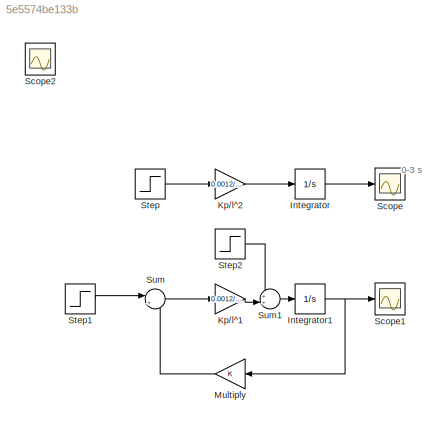
MODEL slx_5e5574be133b
KIND model
CONFIG AbsTol = auto
CONFIG EnableMultiTasking = off
CONFIG FixedStep = auto
CONFIG MaxStep = auto
CONFIG MinStep = auto
CONFIG RelTol = 1e-3
CONFIG SampleTimeConstraint = Unconstrained
CONFIG SolverName = VariableStepAuto
CONFIG StartTime = 0.0
CONFIG StopTime = 100
BLOCK [Integrator] Integrator
  InitialCondition = 0.5
BLOCK [Integrator] Integrator1
BLOCK [Gain] Kp//l^1
  Gain = 0.0012/(0.1*0.1)
BLOCK [Gain] Kp//l^2
  Gain = 0.0012/(0.1*0.1)
BLOCK [Gain] Multiply
  NameLocation = top
BLOCK [Scope] Scope
  Floating = off
  NumInputPorts = 1
  ScopeSpecificationString = Simulink.scopes.TimeScopeBlockCfg('CurrentConfiguration', extmgr.ConfigurationSet(extmgr.Configuration('Core','General UI',true),extmgr.Configuration('Core','Source UI',true),extmgr.Configuration('Sources','WiredSimulink',true),extmgr.Configuration('Visuals','Time Domain',true,'SerializedDisplays',{struct('MinYLimReal','-133.15','MaxYLimReal','15.35','YLabelReal','','MinYLimMag',' 0.00000','MaxYLi...<+1392ch>
BLOCK [Scope] Scope1
  Floating = off
  NumInputPorts = 1
  ScopeSpecificationString = Simulink.scopes.TimeScopeBlockCfg('CurrentConfiguration', extmgr.ConfigurationSet(extmgr.Configuration('Core','General UI',true),extmgr.Configuration('Core','Source UI',true),extmgr.Configuration('Sources','WiredSimulink',true,'DataLoggingVariableName','ScopeData1'),extmgr.Configuration('Visuals','Time Domain',true,'SerializedDisplays',{struct('MinYLimReal','-0.52083','MaxYLimReal','4.68747','YLab...<+1451ch>
BLOCK [Scope] Scope2
  Floating = off
  IOType = viewer
  NumInputPorts = 1
  ScopeSpecificationString = Simulink.scopes.TimeScopeBlockCfg('CurrentConfiguration', extmgr.ConfigurationSet(extmgr.Configuration('Core','General UI',true),extmgr.Configuration('Core','Source UI',true),extmgr.Configuration('Sources','WiredSimulink',true,'DataLoggingVariableName','ScopeData2'),extmgr.Configuration('Visuals','Time Domain',true,'SerializedDisplays',{struct('MinYLimReal','-11.76402','MaxYLimReal','5.8772','YLab...<+1416ch>
BLOCK [Step] Step
  After = -10
  SampleTime = 0
BLOCK [Step] Step1
  After = 5
  SampleTime = 0
BLOCK [Step] Step2
  After = -0.1
  SampleTime = 0
BLOCK [Sum] Sum
  Inputs = |+-
BLOCK [Sum] Sum1
  Inputs = ++|
ANNOTATION (root): 0-3 s
NET Integrator1:1 -> Multiply:1, Scope1:1
LINE Integrator:1 -> Scope:1
LINE Kp//l^1:1 -> Sum1:2
LINE Kp//l^2:1 -> Integrator:1
LINE Multiply:1 -> Sum:2
LINE Step1:1 -> Sum:1
LINE Step2:1 -> Sum1:1
LINE Step:1 -> Kp//l^2:1
LINE Sum1:1 -> Integrator1:1
LINE Sum:1 -> Kp//l^1:1
note: NET lines group one-source signal fan-out (src -> all destinations, sorted); 1:1 wires keep LINE
